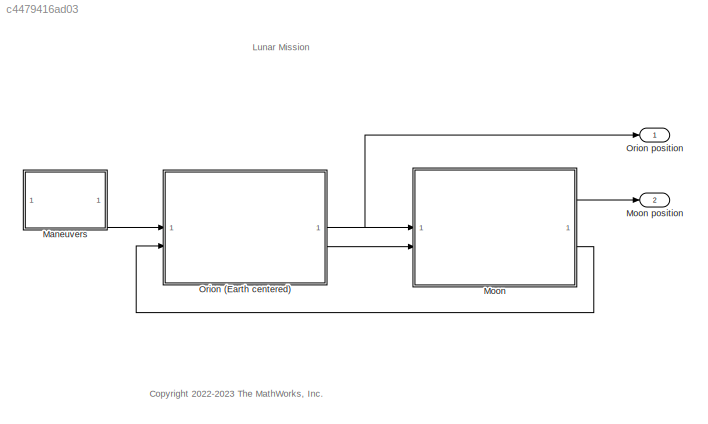
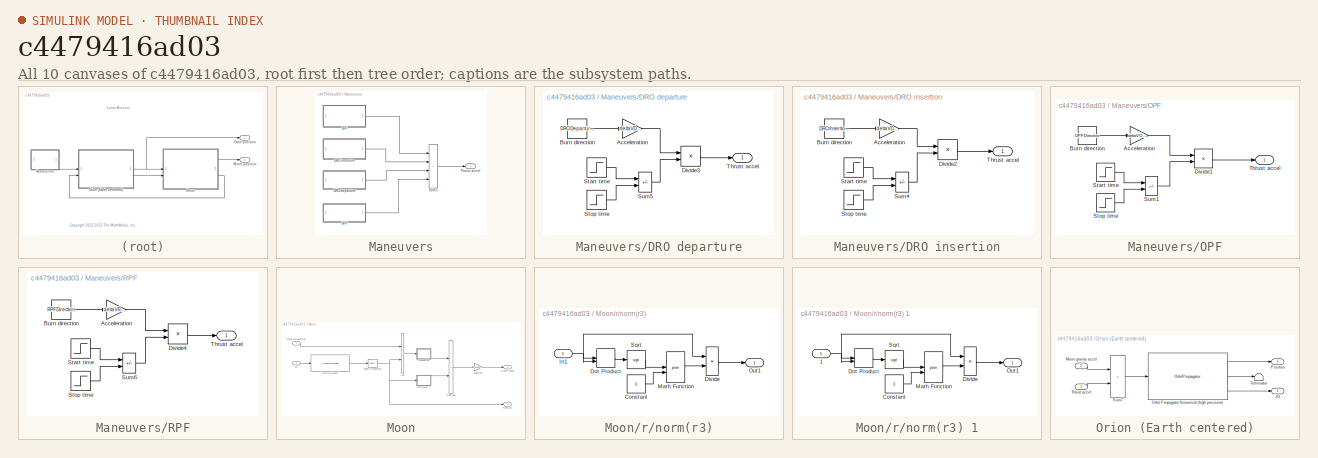
[diagram: thumbnail index - all 10 canvases of the model, root first then tree order]
MODEL slx_c4479416ad03
KIND model
CONFIG AbsTol = 1e-12
CONFIG EnableMultiTasking = off
CONFIG FixedStep = auto
CONFIG MaxStep = auto
CONFIG MinStep = auto
CONFIG RelTol = 1e-12
CONFIG SampleTimeConstraint = Unconstrained
CONFIG SolverName = ode45
CONFIG StartTime = 0.0
CONFIG StopTime = tf
BLOCK [SubSystem] Maneuvers
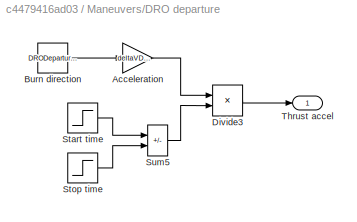
BLOCK [SubSystem] Maneuvers/DRO departure
BLOCK [Gain] Maneuvers/DRO departure/Acceleration
  Gain = deltaVDRODeparture/burnDuration
BLOCK [Constant] Maneuvers/DRO departure/Burn direction
  Value = DRODepartureDirection
BLOCK [Product] Maneuvers/DRO departure/Divide3
  Inputs = **
BLOCK [Step] Maneuvers/DRO departure/Start time
  SampleTime = 0
  Time = tDRODeparture
BLOCK [Step] Maneuvers/DRO departure/Stop time
  SampleTime = 0
  Time = tDRODeparture+burnDuration
BLOCK [Sum] Maneuvers/DRO departure/Sum5
  IconShape = rectangular
  Inputs = +-
BLOCK [Outport] Maneuvers/DRO departure/Thrust accel
BLOCK [SubSystem] Maneuvers/DRO insertion
BLOCK [Gain] Maneuvers/DRO insertion/Acceleration
  Gain = deltaVDROInsertion/burnDuration
BLOCK [Constant] Maneuvers/DRO insertion/Burn direction
  Value = DROInsertionDirection
BLOCK [Product] Maneuvers/DRO insertion/Divide2
  Inputs = **
BLOCK [Step] Maneuvers/DRO insertion/Start time
  SampleTime = 0
  Time = tDROInsertion
BLOCK [Step] Maneuvers/DRO insertion/Stop time
  SampleTime = 0
  Time = tDROInsertion+burnDuration
BLOCK [Sum] Maneuvers/DRO insertion/Sum4
  IconShape = rectangular
  Inputs = +-
BLOCK [Outport] Maneuvers/DRO insertion/Thrust accel
BLOCK [SubSystem] Maneuvers/OPF
BLOCK [Gain] Maneuvers/OPF/Acceleration
  Gain = deltaVOPF/burnDuration
BLOCK [Constant] Maneuvers/OPF/Burn direction
  Value = OPFDirection
BLOCK [Product] Maneuvers/OPF/Divide1
  Inputs = **
BLOCK [Step] Maneuvers/OPF/Start time
  SampleTime = 0
  Time = tOPF
BLOCK [Step] Maneuvers/OPF/Stop time
  SampleTime = 0
  Time = tOPF+burnDuration
BLOCK [Sum] Maneuvers/OPF/Sum1
  IconShape = rectangular
  Inputs = +-
BLOCK [Outport] Maneuvers/OPF/Thrust accel
BLOCK [SubSystem] Maneuvers/RPF
BLOCK [Gain] Maneuvers/RPF/Acceleration
  Gain = deltaVRPF/burnDuration
BLOCK [Constant] Maneuvers/RPF/Burn direction
  Value = RPFDirection
BLOCK [Product] Maneuvers/RPF/Divide4
  Inputs = **
BLOCK [Step] Maneuvers/RPF/Start time
  SampleTime = 0
  Time = tRPF
BLOCK [Step] Maneuvers/RPF/Stop time
  SampleTime = 0
  Time = tRPF+burnDuration
BLOCK [Sum] Maneuvers/RPF/Sum6
  IconShape = rectangular
  Inputs = +-
BLOCK [Outport] Maneuvers/RPF/Thrust accel
BLOCK [Sum] Maneuvers/Sum3
  IconShape = rectangular
  Inputs = ++++
BLOCK [Outport] Maneuvers/Thrust accel
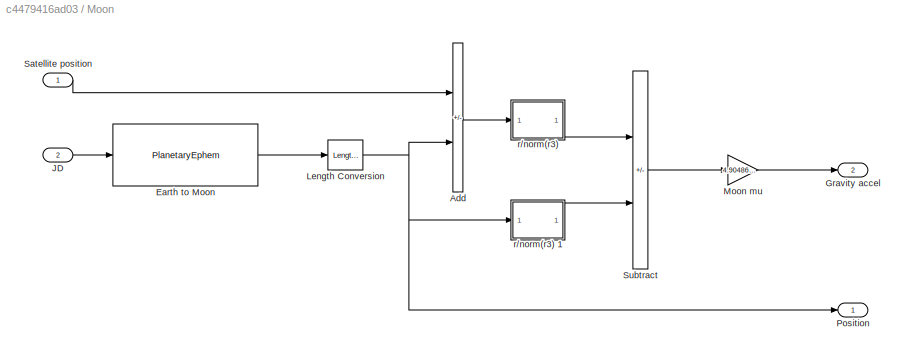
BLOCK [SubSystem] Moon
BLOCK [Outport] Moon position
  Port = 2
BLOCK [Sum] Moon/Add
  IconShape = rectangular
  Inputs = -+
BLOCK [PlanetaryEphem] Moon/Earth to Moon
  outputVelocity = off
BLOCK [Outport] Moon/Gravity accel
  Port = 2
BLOCK [Inport] Moon/JD
  Port = 2
BLOCK [Reference] Moon/Length Conversion  REF=aerolibconvert2/Length Conversion
  SourceBlock = aerolibconvert2/Length Conversion
  SourceType = Length Conversion
BLOCK [Gain] Moon/Moon mu
  Gain = 4.9048695e12
BLOCK [Outport] Moon/Position
BLOCK [Inport] Moon/Satellite position
BLOCK [Sum] Moon/Subtract
  IconShape = rectangular
  Inputs = +-
BLOCK [SubSystem] Moon/r//norm(r3)
BLOCK [SubSystem] Moon/r//norm(r3) 1
BLOCK [Inport] Moon/r//norm(r3) 1/1
BLOCK [Constant] Moon/r//norm(r3) 1/Constant
  Value = 3
BLOCK [Product] Moon/r//norm(r3) 1/Divide
  Inputs = */
BLOCK [DotProduct] Moon/r//norm(r3) 1/Dot Product
  OutDataTypeStr = Inherit: Inherit via internal rule
BLOCK [Math] Moon/r//norm(r3) 1/Math Function
  Operator = pow
BLOCK [Outport] Moon/r//norm(r3) 1/Out1
BLOCK [Sqrt] Moon/r//norm(r3) 1/Sqrt
BLOCK [Constant] Moon/r//norm(r3)/Constant
  Value = 3
BLOCK [Product] Moon/r//norm(r3)/Divide
  Inputs = */
BLOCK [DotProduct] Moon/r//norm(r3)/Dot Product
  OutDataTypeStr = Inherit: Inherit via internal rule
BLOCK [Inport] Moon/r//norm(r3)/In1
BLOCK [Math] Moon/r//norm(r3)/Math Function
  Operator = pow
BLOCK [Outport] Moon/r//norm(r3)/Out1
BLOCK [Sqrt] Moon/r//norm(r3)/Sqrt
BLOCK [SubSystem] Orion (Earth centered)
BLOCK [Outport] Orion (Earth centered)/JD
  Port = 2
BLOCK [Inport] Orion (Earth centered)/Moon gravity accel
  Port = 2
BLOCK [OrbitPropagator] Orion (Earth centered)/Orbit Propagator Numerical (high precision)
  accelIn = on
  action = None
  argPeriapsis = 0
  customJ2 = 1.0826269e-03
  customMu = 4.305e13
  customOmega = 4.06125949e-3
  customR = 3396200
  eccentricity = 0
  fixedPosition = [-4142689.0 -2676864.7 -4669861.6]
  fixedVelocity = [1452.7 -6720.7 2568.1]
  gravityModel = Point-mass
  inclination = 30
  inertialPosition = initialPosition
  inertialVelocity = initialVelocity
  propagator = Numerical (high precision)
  raan = 0
  startDate = jd
  stateFormatNum = ICRF state vector
  trueAnomaly = 0
  useEOPs = off
BLOCK [Outport] Orion (Earth centered)/Position
BLOCK [Sum] Orion (Earth centered)/Sum7
  IconShape = rectangular
BLOCK [Terminator] Orion (Earth centered)/Terminator
BLOCK [Inport] Orion (Earth centered)/Thrust accel
BLOCK [Outport] Orion position
ANNOTATION (root): <copyright redacted>
ANNOTATION (root): Lunar Mission
LINE Maneuvers/DRO departure/Acceleration:1 -> Maneuvers/DRO departure/Divide3:1
LINE Maneuvers/DRO departure/Burn direction:1 -> Maneuvers/DRO departure/Acceleration:1
LINE Maneuvers/DRO departure/Divide3:1 -> Maneuvers/DRO departure/Thrust accel:1
LINE Maneuvers/DRO departure/Start time:1 -> Maneuvers/DRO departure/Sum5:1
LINE Maneuvers/DRO departure/Stop time:1 -> Maneuvers/DRO departure/Sum5:2
LINE Maneuvers/DRO departure/Sum5:1 -> Maneuvers/DRO departure/Divide3:2
LINE Maneuvers/DRO departure:1 -> Maneuvers/Sum3:3
LINE Maneuvers/DRO insertion/Acceleration:1 -> Maneuvers/DRO insertion/Divide2:1
LINE Maneuvers/DRO insertion/Burn direction:1 -> Maneuvers/DRO insertion/Acceleration:1
LINE Maneuvers/DRO insertion/Divide2:1 -> Maneuvers/DRO insertion/Thrust accel:1
LINE Maneuvers/DRO insertion/Start time:1 -> Maneuvers/DRO insertion/Sum4:1
LINE Maneuvers/DRO insertion/Stop time:1 -> Maneuvers/DRO insertion/Sum4:2
LINE Maneuvers/DRO insertion/Sum4:1 -> Maneuvers/DRO insertion/Divide2:2
LINE Maneuvers/DRO insertion:1 -> Maneuvers/Sum3:2
LINE Maneuvers/OPF/Acceleration:1 -> Maneuvers/OPF/Divide1:1
LINE Maneuvers/OPF/Burn direction:1 -> Maneuvers/OPF/Acceleration:1
LINE Maneuvers/OPF/Divide1:1 -> Maneuvers/OPF/Thrust accel:1
LINE Maneuvers/OPF/Start time:1 -> Maneuvers/OPF/Sum1:1
LINE Maneuvers/OPF/Stop time:1 -> Maneuvers/OPF/Sum1:2
LINE Maneuvers/OPF/Sum1:1 -> Maneuvers/OPF/Divide1:2
LINE Maneuvers/OPF:1 -> Maneuvers/Sum3:1
LINE Maneuvers/RPF/Acceleration:1 -> Maneuvers/RPF/Divide4:1
LINE Maneuvers/RPF/Burn direction:1 -> Maneuvers/RPF/Acceleration:1
LINE Maneuvers/RPF/Divide4:1 -> Maneuvers/RPF/Thrust accel:1
LINE Maneuvers/RPF/Start time:1 -> Maneuvers/RPF/Sum6:1
LINE Maneuvers/RPF/Stop time:1 -> Maneuvers/RPF/Sum6:2
LINE Maneuvers/RPF/Sum6:1 -> Maneuvers/RPF/Divide4:2
LINE Maneuvers/RPF:1 -> Maneuvers/Sum3:4
LINE Maneuvers/Sum3:1 -> Maneuvers/Thrust accel:1
LINE Maneuvers:1 -> Orion (Earth centered):1
LINE Moon/Add:1 -> Moon/r//norm(r3):1
LINE Moon/Earth to Moon:1 -> Moon/Length Conversion:1
LINE Moon/JD:1 -> Moon/Earth to Moon:1
NET Moon/Length Conversion:1 -> Moon/Add:2, Moon/Position:1, Moon/r//norm(r3) 1:1
LINE Moon/Moon mu:1 -> Moon/Gravity accel:1
LINE Moon/Satellite position:1 -> Moon/Add:1
LINE Moon/Subtract:1 -> Moon/Moon mu:1
NET Moon/r//norm(r3) 1/1:1 -> Moon/r//norm(r3) 1/Divide:1, Moon/r//norm(r3) 1/Dot Product:1, Moon/r//norm(r3) 1/Dot Product:2
LINE Moon/r//norm(r3) 1/Constant:1 -> Moon/r//norm(r3) 1/Math Function:2
LINE Moon/r//norm(r3) 1/Divide:1 -> Moon/r//norm(r3) 1/Out1:1
LINE Moon/r//norm(r3) 1/Dot Product:1 -> Moon/r//norm(r3) 1/Sqrt:1
LINE Moon/r//norm(r3) 1/Math Function:1 -> Moon/r//norm(r3) 1/Divide:2
LINE Moon/r//norm(r3) 1/Sqrt:1 -> Moon/r//norm(r3) 1/Math Function:1
LINE Moon/r//norm(r3) 1:1 -> Moon/Subtract:2
LINE Moon/r//norm(r3)/Constant:1 -> Moon/r//norm(r3)/Math Function:2
LINE Moon/r//norm(r3)/Divide:1 -> Moon/r//norm(r3)/Out1:1
LINE Moon/r//norm(r3)/Dot Product:1 -> Moon/r//norm(r3)/Sqrt:1
NET Moon/r//norm(r3)/In1:1 -> Moon/r//norm(r3)/Divide:1, Moon/r//norm(r3)/Dot Product:1, Moon/r//norm(r3)/Dot Product:2
LINE Moon/r//norm(r3)/Math Function:1 -> Moon/r//norm(r3)/Divide:2
LINE Moon/r//norm(r3)/Sqrt:1 -> Moon/r//norm(r3)/Math Function:1
LINE Moon/r//norm(r3):1 -> Moon/Subtract:1
LINE Moon:1 -> Moon position:1
LINE Moon:2 -> Orion (Earth centered):2
LINE Orion (Earth centered)/Moon gravity accel:1 -> Orion (Earth centered)/Sum7:1
LINE Orion (Earth centered)/Orbit Propagator Numerical (high precision):1 -> Orion (Earth centered)/Position:1
LINE Orion (Earth centered)/Orbit Propagator Numerical (high precision):2 -> Orion (Earth centered)/Terminator:1
LINE Orion (Earth centered)/Orbit Propagator Numerical (high precision):3 -> Orion (Earth centered)/JD:1
LINE Orion (Earth centered)/Sum7:1 -> Orion (Earth centered)/Orbit Propagator Numerical (high precision):1
LINE Orion (Earth centered)/Thrust accel:1 -> Orion (Earth centered)/Sum7:2
NET Orion (Earth centered):1 -> Moon:1, Orion position:1
LINE Orion (Earth centered):2 -> Moon:2
note: NET lines group one-source signal fan-out (src -> all destinations, sorted); 1:1 wires keep LINE
